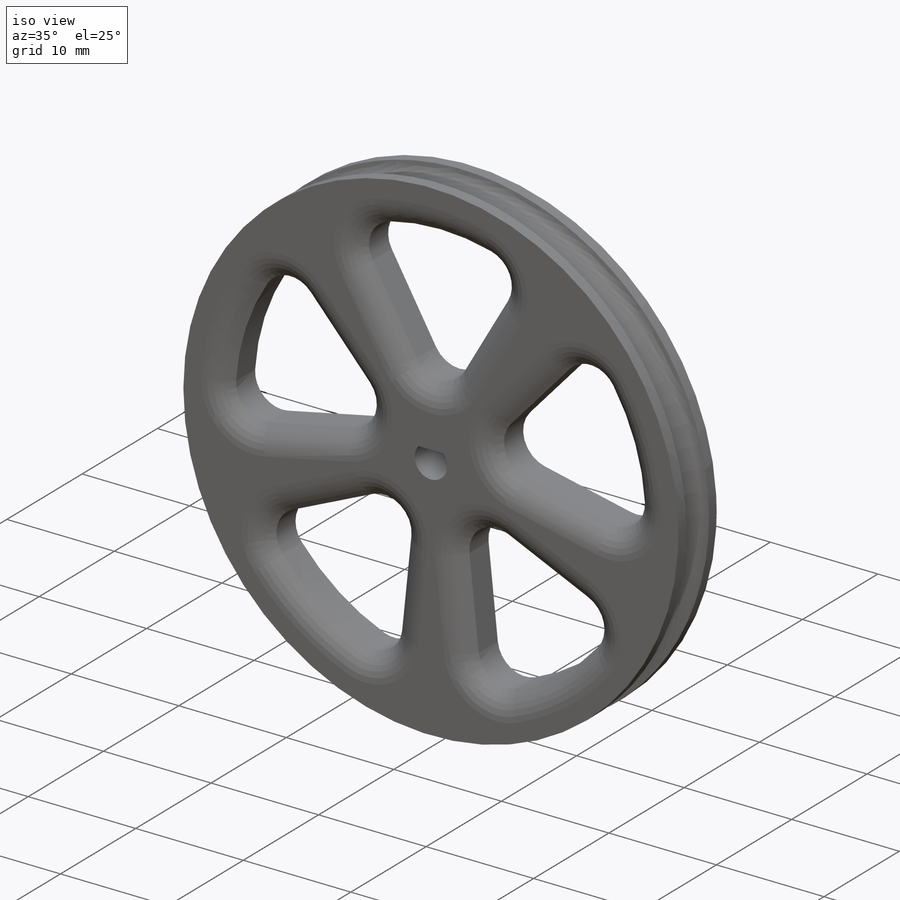
[diagram: iso view]
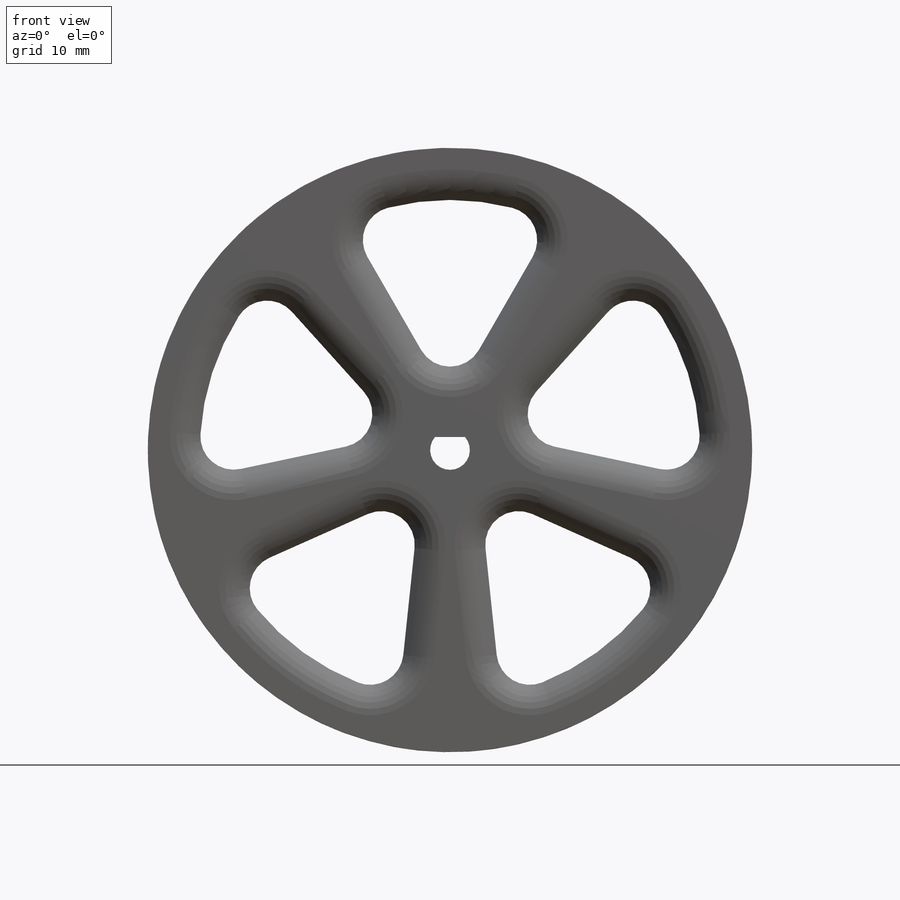
[diagram: front view]
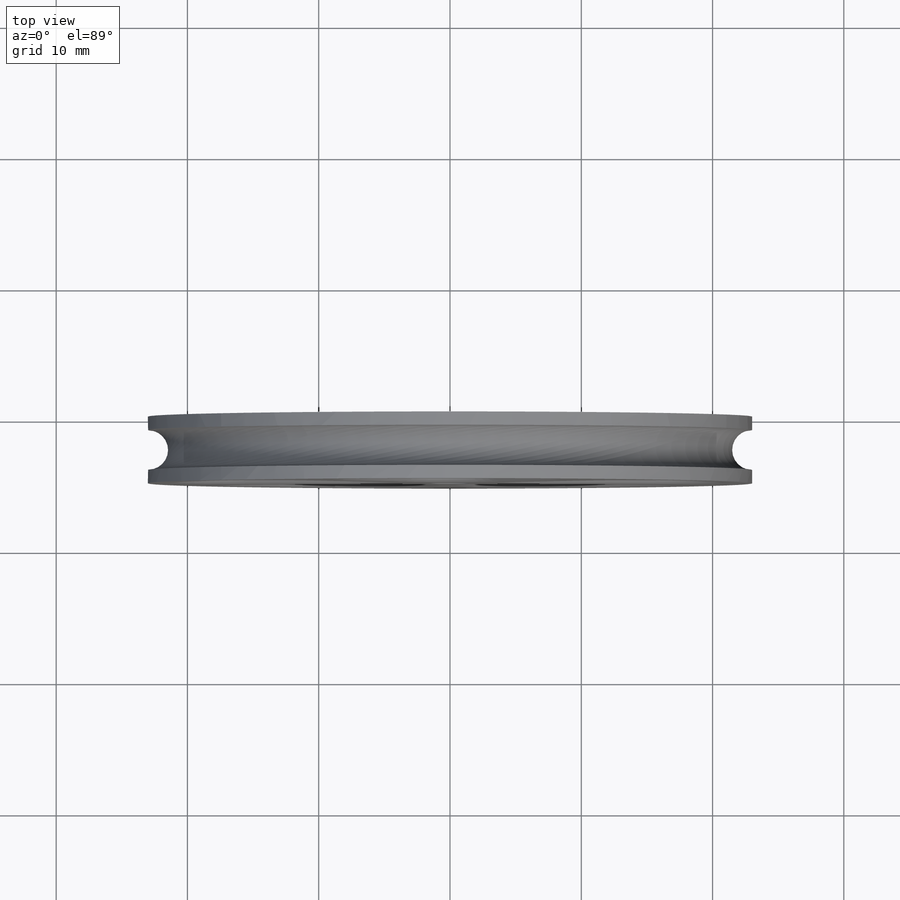
[diagram: top view]
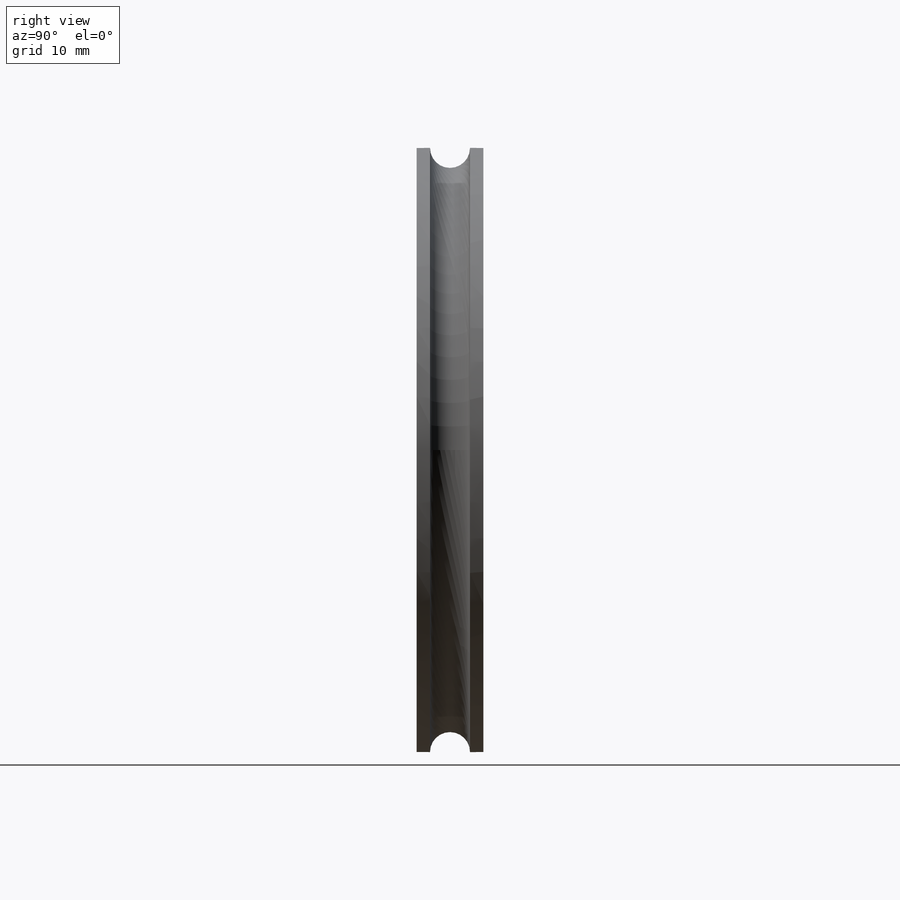
[diagram: right view]
SOLIDWORKS PART (.sldprt)
format: sldprt  version: not decoded by parser v0  size: 513,536 bytes
history: native  units: mm
features: sketch x5, cut_extrude x2, fillet x2, material x1, extrude x1, chamfer x1, pattern_circular x1, cut_revolve x1 (+13 scaffold rows collapsed)
feature tree (27):
  scaffold x13  (default folders/planes/origin — collapsed)
  material  "Material <not specified>"
  sketch  "Sketch1"  dims[D1=46.0375mm]
  extrude  "Boss-Extrude1"  Depth=5.08mm
  sketch  "Sketch2"  dims[c1.D1=38.1mm c1.D2=19.05mm c2.D2=60.0deg c3.D2=19.05mm c4.D2=30.0deg c4.D3=3.81mm]
  cut_extrude  "Cut-Extrude3"  [1 undecoded]
  sketch  "3DSketch1"  dims[D1=~15.536626mm]
  fillet  "Fillet3"  Radius=2.54mm
  chamfer  "Chamfer2"  Distance=1.27mm Angle=45deg
  pattern_circular  "CirPattern3"  Count=5 Angle=72deg
  sketch  "Sketch5"  dims[c1.D1=3.0226mm c1.D2=3.0226mm c1.D3=3.0226mm c2.D2=~0.839172mm c3.D2=2.5019mm]
  cut_extrude  "Cut-Extrude4"  [1 undecoded]
  fillet  "Fillet4"  Radius=2.54mm
  sketch  "Sketch7"  dims[D1=3.048mm]
  cut_revolve  "Cut-Revolve1"  Angle=360deg
decode coverage: 11 of 13 modeling features carry decoded parameters
note: ~ marks probable driven/reference dimensions
note: 2 parameter values undecoded
note: suppression state not decoded; provenance and decode notes live in map.json
